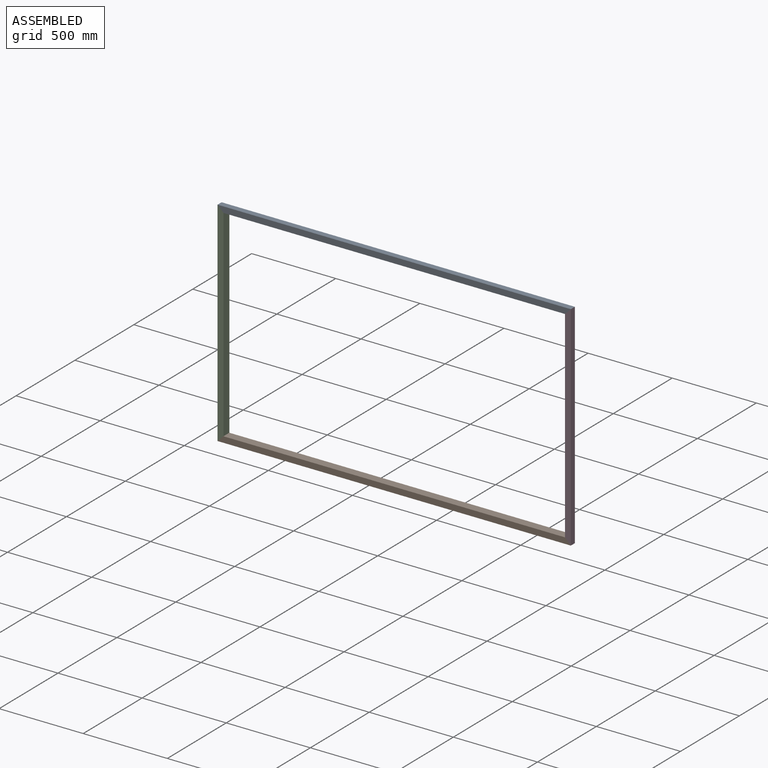
[diagram: assembled view]
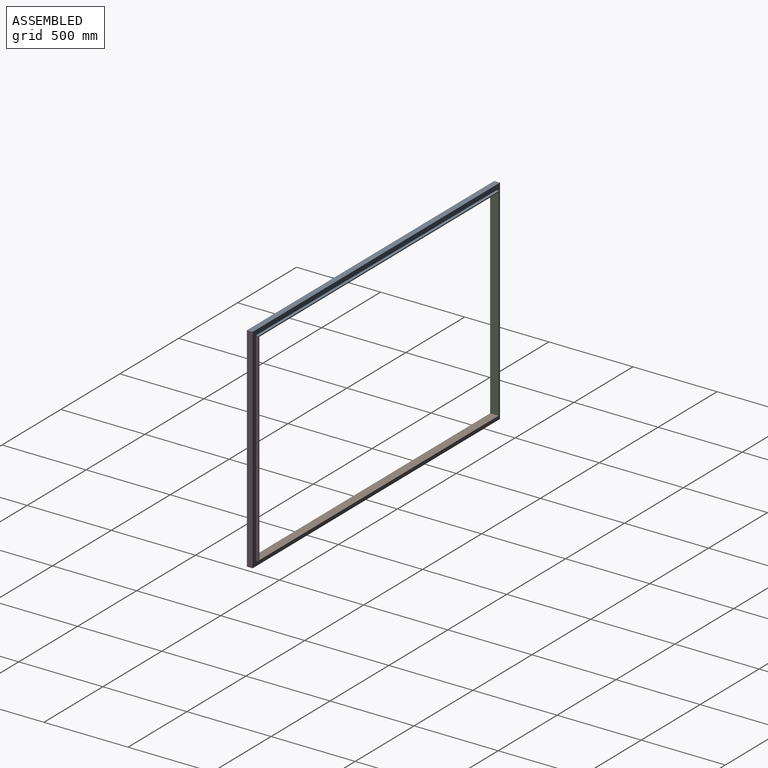
[diagram: assembled view, second angle]
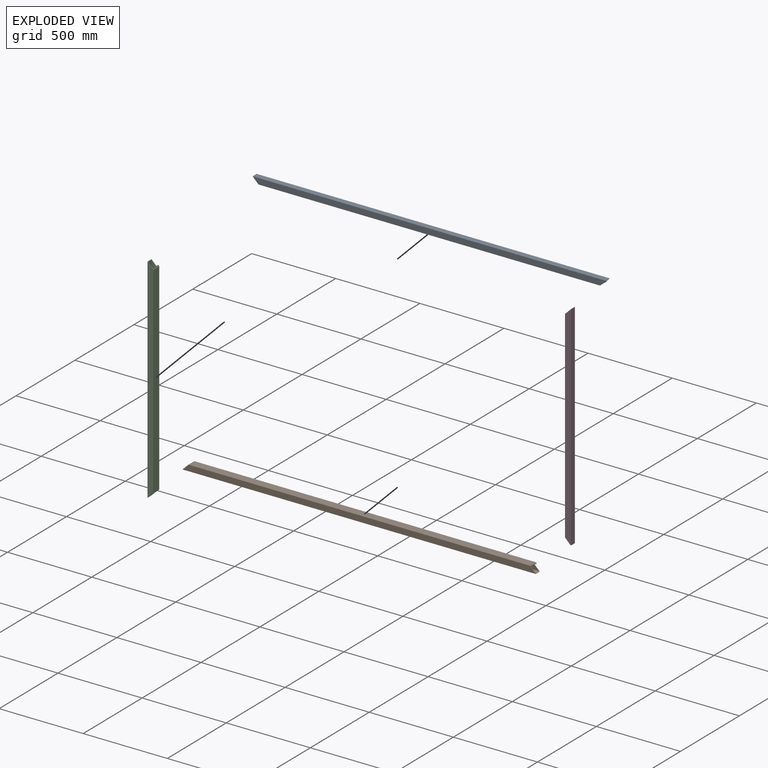
[diagram: exploded view]
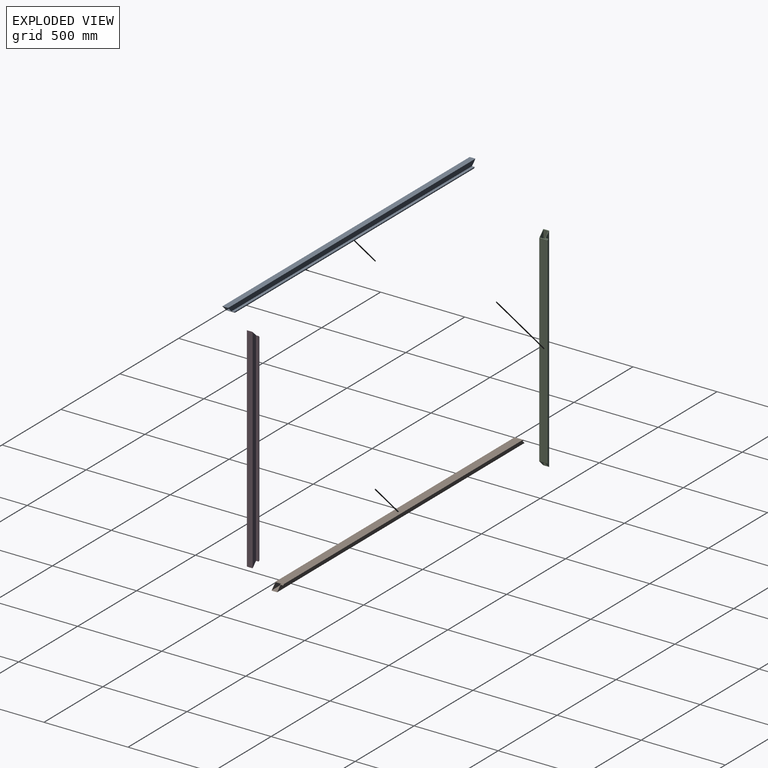
[diagram: exploded view, second angle]
ASSEMBLY  parts=4 mates=3
PART A: 14 faces, bbox 2100x50x35 mm
  f0: plane 2030x50mm, normal (0,0,-1), area 101500mm2, adj f1,f11,f12,f13
  f1: plane 2100x35mm, normal (0,-1,0), area 72275mm2, adj f0,f2,f12,f13
  f2: plane 2100x34mm, normal (0,0,1), area 71400mm2, adj f1,f3,f12,f13
  f3: plane 2100x29mm, normal (0,1,0), area 60059mm2, adj f2,f4,f12,f13
  f4: plane 2042x16mm, normal (0,0,1), area 32672mm2, adj f3,f11,f12,f13
  f5: plane 2096x31mm, normal (0,1,0), area 64015mm2, adj f6,f10,f12,f13
  f6: plane 2034x46mm, normal (0,0,1), area 93564mm2, adj f5,f7,f12,f13
  f7: plane 2038x2mm, normal (0,-1,0), area 4072mm2, adj f6,f8,f12,f13
  f8: plane 2038x16mm, normal (0,0,-1), area 32608mm2, adj f7,f9,f12,f13
  f9: plane 2096x29mm, normal (0,-1,0), area 59943mm2, adj f8,f10,f12,f13
  f10: plane 2096x30mm, normal (0,0,-1), area 62880mm2, adj f5,f9,f12,f13
  f11: plane 2042x6mm, normal (0,1,0), area 12216mm2, adj f0,f4,f12,f13
  f12: plane 50x35mm, normal (0.71,0,-0.71), area 458.2mm2, adj f0,f1,f2,f3,f4,f5,f6,f7
  f13: plane 50x35mm, normal (-0.71,0,-0.71), area 458.2mm2, adj f0,f1,f2,f3,f4,f5,f6,f7
PART B: same geometry as A
PART C: 14 faces, bbox 50x1270x35 mm
  f0: plane 1200x50mm, normal (0,0,1), area 60000mm2, adj f1,f10,f12,f13
  f1: plane 1270x35mm, normal (-1,0,0), area 43225mm2, adj f0,f11,f12,f13
  f2: plane 1270x29mm, normal (1,0,0), area 35989mm2, adj f3,f11,f12,f13
  f3: plane 1212x16mm, normal (0,0,-1), area 19392mm2, adj f2,f10,f12,f13
  f4: plane 1266x30mm, normal (0,0,1), area 37980mm2, adj f5,f9,f12,f13
  f5: plane 1266x31mm, normal (1,0,0), area 38285mm2, adj f4,f6,f12,f13
  f6: plane 1204x46mm, normal (0,0,-1), area 55384mm2, adj f5,f7,f12,f13
  f7: plane 1208x2mm, normal (-1,0,0), area 2412mm2, adj f6,f8,f12,f13
  f8: plane 1208x16mm, normal (0,0,1), area 19328mm2, adj f7,f9,f12,f13
  f9: plane 1266x29mm, normal (-1,0,0), area 35873mm2, adj f4,f8,f12,f13
  f10: plane 1212x6mm, normal (1,0,0), area 7236mm2, adj f0,f3,f12,f13
  f11: plane 1270x34mm, normal (0,0,-1), area 43180mm2, adj f1,f2,f12,f13
  f12: plane 50x35mm, normal (0,-0.71,0.71), area 458.2mm2, adj f0,f1,f2,f3,f4,f5,f6,f7
  f13: plane 50x35mm, normal (0,0.71,0.71), area 458.2mm2, adj f0,f1,f2,f3,f4,f5,f6,f7
PART D: 14 faces, bbox 35x50x1270 mm
  f0: plane 1266x30mm, normal (-1,0,0), area 37980mm2, adj f1,f7,f12,f13
  f1: plane 1266x29mm, normal (0,-1,0), area 35873mm2, adj f0,f2,f12,f13
  f2: plane 1208x16mm, normal (-1,0,0), area 19328mm2, adj f1,f6,f12,f13
  f3: plane 1200x50mm, normal (-1,0,0), area 60000mm2, adj f4,f10,f12,f13
  f4: plane 1212x6mm, normal (0,1,0), area 7236mm2, adj f3,f5,f12,f13
  f5: plane 1212x16mm, normal (1,0,0), area 19392mm2, adj f4,f9,f12,f13
  f6: plane 1208x2mm, normal (0,-1,0), area 2412mm2, adj f2,f8,f12,f13
  f7: plane 1266x31mm, normal (0,1,0), area 38285mm2, adj f0,f8,f12,f13
  f8: plane 1204x46mm, normal (1,0,0), area 55384mm2, adj f6,f7,f12,f13
  f9: plane 1270x29mm, normal (0,1,0), area 35989mm2, adj f5,f11,f12,f13
  f10: plane 1270x35mm, normal (0,-1,0), area 43225mm2, adj f3,f11,f12,f13
  f11: plane 1270x34mm, normal (1,0,0), area 43180mm2, adj f9,f10,f12,f13
  f12: plane 50x35mm, normal (-0.71,0,0.71), area 458.2mm2, adj f0,f1,f2,f3,f4,f5,f6,f7
  f13: plane 50x35mm, normal (-0.71,0,-0.71), area 458.2mm2, adj f0,f1,f2,f3,f4,f5,f6,f7
PLACE A rot(axis=(-0.05,1,0.03),0deg) t=(0,0,-160)mm
PLACE B rot(axis=(0,1,0),180deg) t=(6421.76,0,3719.27)mm
PLACE C rot(axis=(0.58,0.58,0.58),120deg) t=(2178.38,-2644.03,1779.64)mm fixed
PLACE D rot(axis=(0.37,-0.69,-0.63),0deg) t=(100,0,115)mm
MATE fastened C.f13 <-> A.f13  axis (0.71,0,0.71) through (2181.25,-2638.89,2394.27)mm
MATE fastened B.f13 <-> D.f13  axis (0.71,0,0.71) through (4240.52,-2638.89,1165)mm
MATE fastened C.f12 <-> B.f12  axis (0.71,0,-0.71) through (2181.25,-2638.89,1165)mm
